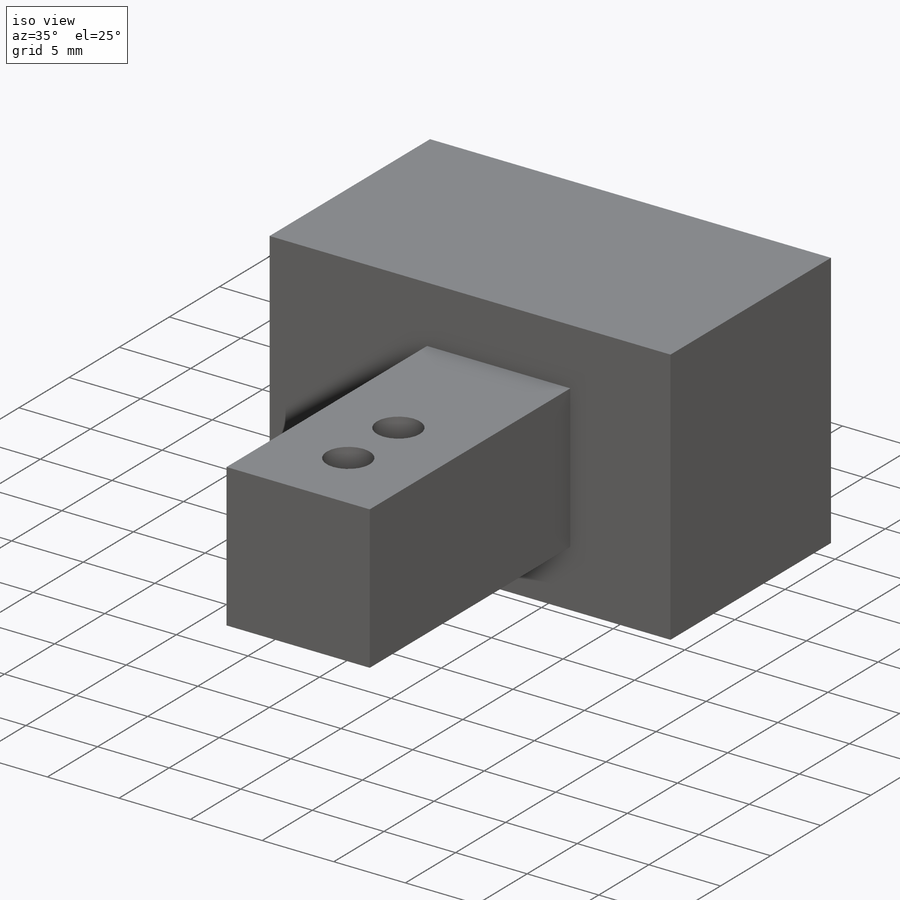
[diagram: iso view]
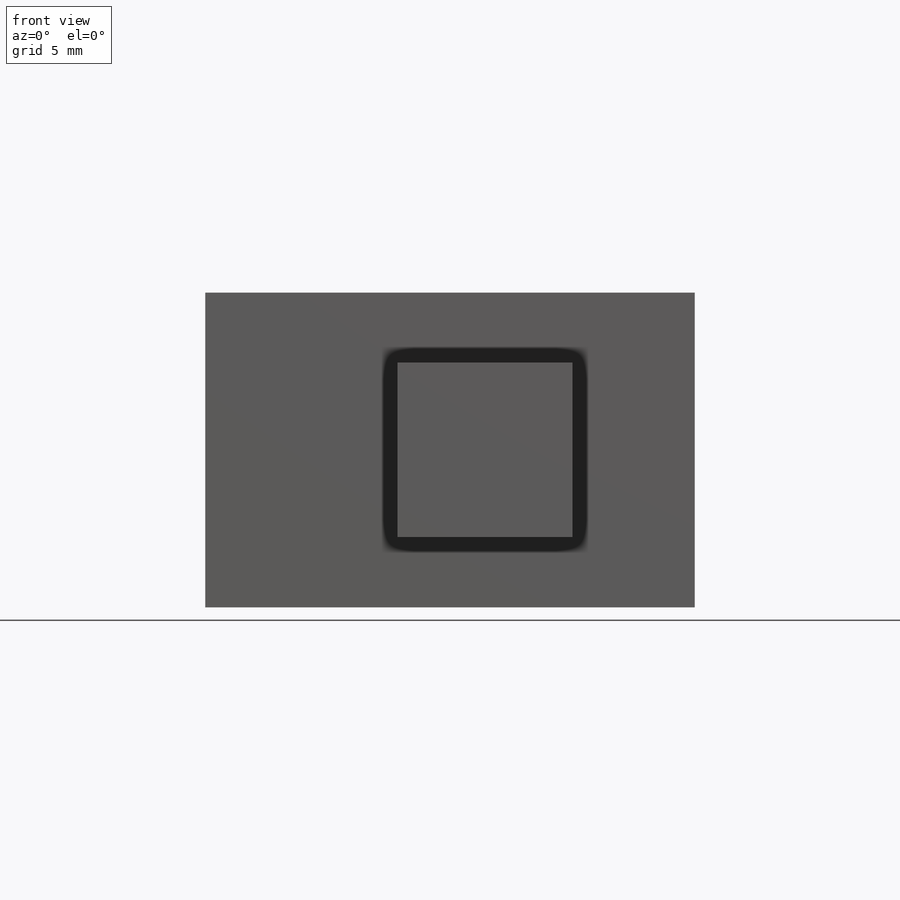
[diagram: front view]
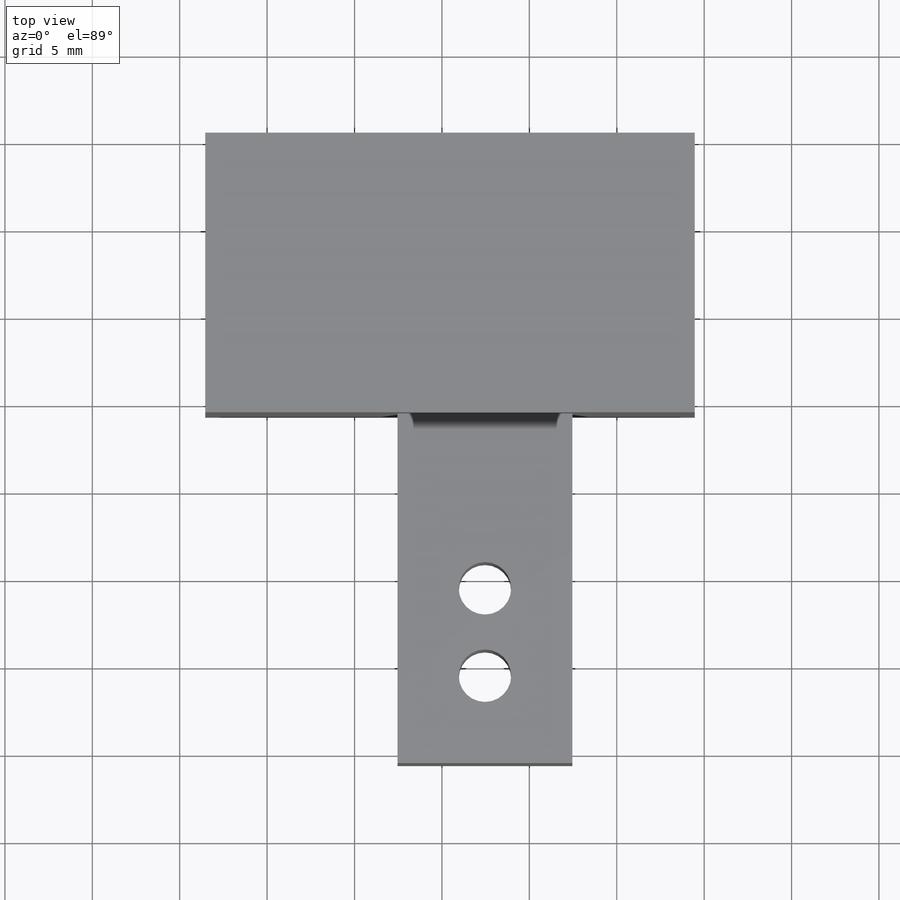
[diagram: top view]
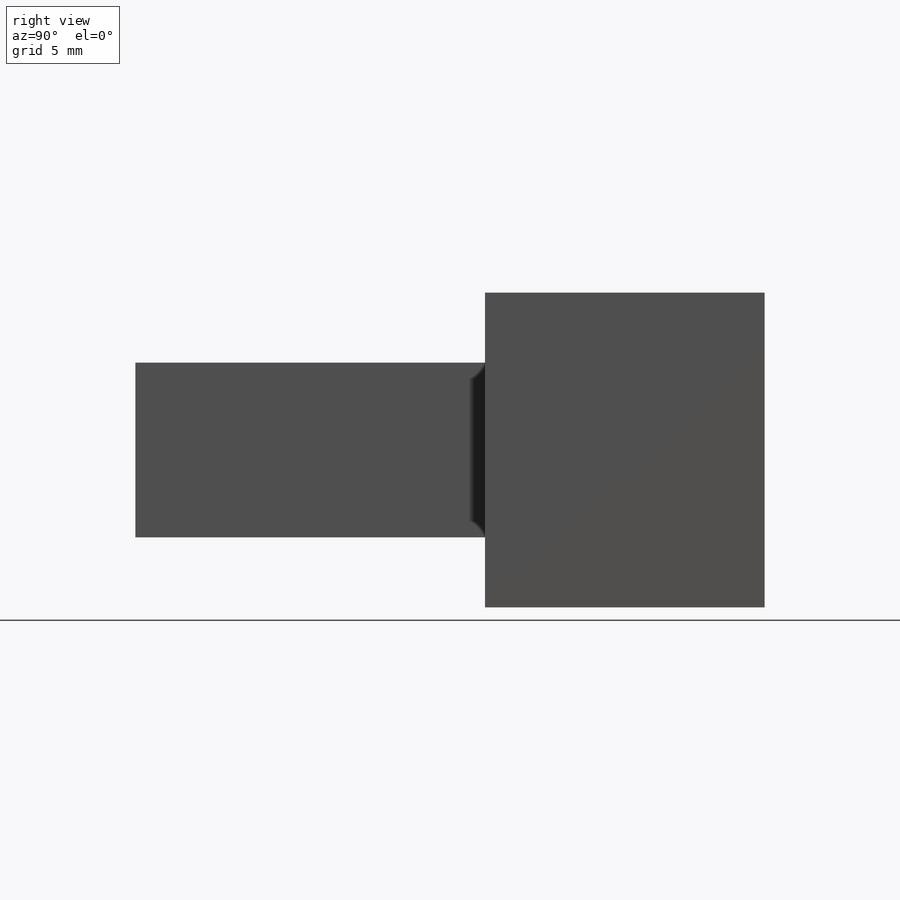
[diagram: right view]
SOLIDWORKS PART (.sldprt)
format: sldprt  version: not decoded by parser v0  size: 325,120 bytes
history: native  units: mm
features: sketch x4, extrude x2, cut_extrude x2, material x1 (+13 scaffold rows collapsed)
feature tree (22):
  scaffold x13  (default folders/planes/origin — collapsed)
  material  "Material <not specified>"
  sketch  "Sketch1"  dims[D1=16.0mm D2=28.0mm]
  extrude  "Boss-Extrude1"  Depth=18mm
  sketch  "Sketch3"  dims[D1=10.0mm D2=10.0mm D3=4.0mm D4=14.0mm D5=7.0mm]
  extrude  "Boss-Extrude3"  Depth=20mm
  sketch  "Sketch4"  dims[c1.D1=3.0mm c1.D2=~1.604246mm c1.D4=3.0mm c1.D5=3.0mm c2.D2=5.0mm c2.D3=10.0mm c2.D4=5.0mm c2.D5=5.0mm]
  cut_extrude  "Cut-Extrude1"  Depth=20mm
  sketch  "Sketch5"  dims[D1=2.0mm D2=2.0mm D3=2.0mm D4=2.0mm]
  cut_extrude  "Cut-Extrude2"  Depth=26mm
decode coverage: 8 of 8 modeling features carry decoded parameters
note: ~ marks probable driven/reference dimensions
note: suppression state not decoded; provenance and decode notes live in map.json
